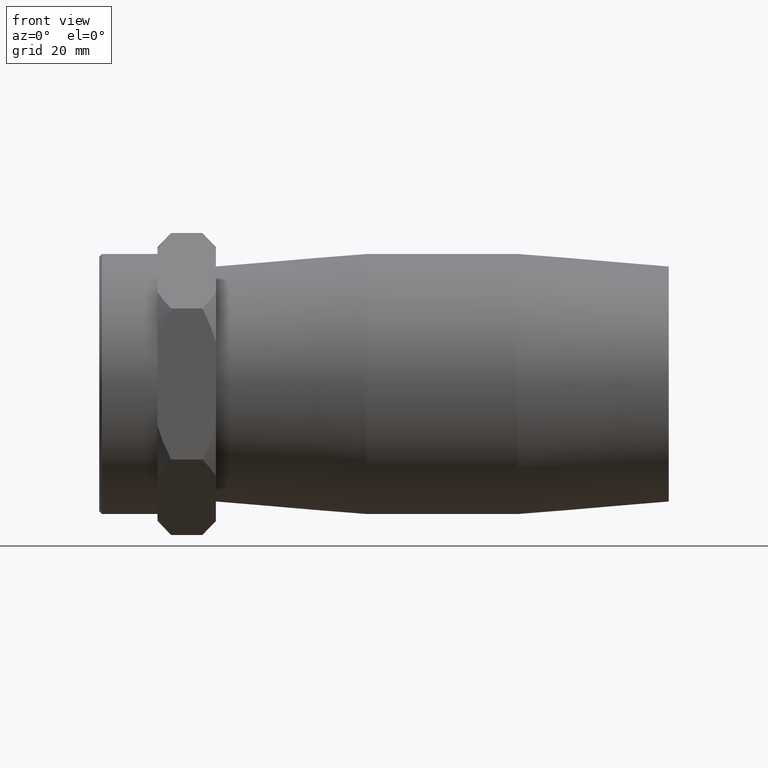
[diagram: clean part render]
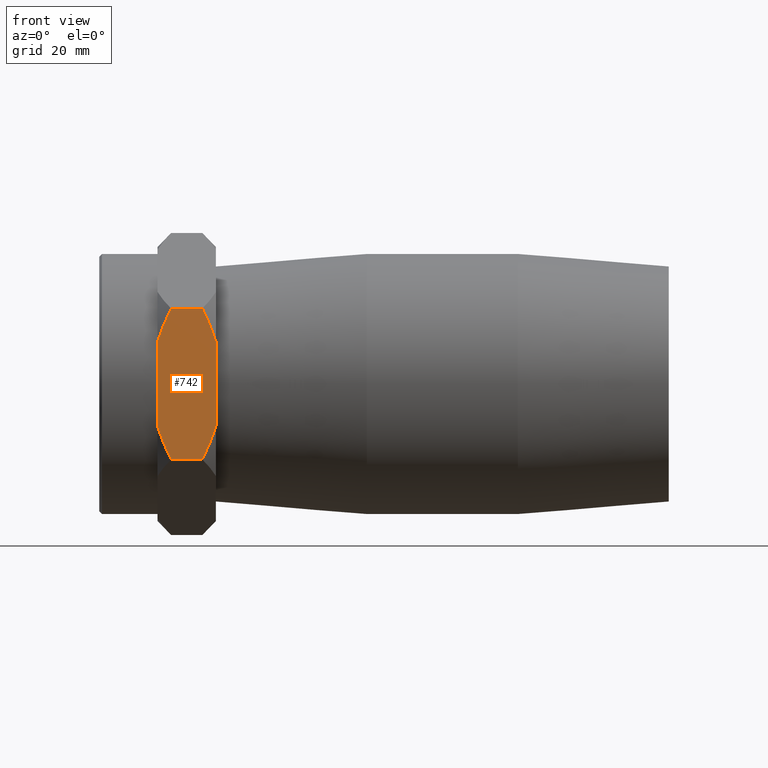
[diagram: same view with one face highlighted and labeled with its STEP entity id]
A machine part, front view. The second image highlights one B-rep face of the part: STEP entity #742.
In plain terms, the highlighted planar face has unit normal (0, -1, -0).
Its self-contained STEP definition (entity closure, byte-faithful):
#24=LINE('',#1273,#48);
#27=LINE('',#1277,#51);
#33=LINE('',#1286,#57);
#37=LINE('',#1292,#61);
#39=LINE('',#1295,#63);
#48=VECTOR('',#978,9.06752258891825);
#51=VECTOR('',#983,6.70000000000002);
#57=VECTOR('',#995,9.06752258891826);
#61=VECTOR('',#1003,6.70000000000002);
#63=VECTOR('',#1007,18.1350451778365);
#71=(
BOUNDED_CURVE()
B_SPLINE_CURVE(2,(#1166,#1167,#1168),.UNSPECIFIED.,.F.,.F.)
B_SPLINE_CURVE_WITH_KNOTS((3,3),(0.,0.767433549102517),.UNSPECIFIED.)
CURVE()
GEOMETRIC_REPRESENTATION_ITEM()
RATIONAL_B_SPLINE_CURVE((1.,1.00667029966225,1.))
REPRESENTATION_ITEM('')
);
#73=(
BOUNDED_CURVE()
B_SPLINE_CURVE(2,(#1177,#1178,#1179),.UNSPECIFIED.,.F.,.F.)
B_SPLINE_CURVE_WITH_KNOTS((3,3),(0.,0.767433549102516),.UNSPECIFIED.)
CURVE()
GEOMETRIC_REPRESENTATION_ITEM()
RATIONAL_B_SPLINE_CURVE((1.,1.00667029966226,1.))
REPRESENTATION_ITEM('')
);
#77=(
BOUNDED_CURVE()
B_SPLINE_CURVE(2,(#1199,#1200,#1201),.UNSPECIFIED.,.F.,.F.)
B_SPLINE_CURVE_WITH_KNOTS((3,3),(0.,0.767433549102517),.UNSPECIFIED.)
CURVE()
GEOMETRIC_REPRESENTATION_ITEM()
RATIONAL_B_SPLINE_CURVE((1.,1.00667029966211,1.))
REPRESENTATION_ITEM('')
);
#83=(
BOUNDED_CURVE()
B_SPLINE_CURVE(2,(#1232,#1233,#1234),.UNSPECIFIED.,.F.,.F.)
B_SPLINE_CURVE_WITH_KNOTS((3,3),(0.,0.767433549102517),.UNSPECIFIED.)
CURVE()
GEOMETRIC_REPRESENTATION_ITEM()
RATIONAL_B_SPLINE_CURVE((1.,1.00667029966217,1.))
REPRESENTATION_ITEM('')
);
#111=PLANE('',#825);
#183=FACE_OUTER_BOUND('',#245,.T.);
#245=EDGE_LOOP('',(#619,#620,#621,#622,#623,#624,#625,#626,#627));
#348=VERTEX_POINT('',#1123);
#360=VERTEX_POINT('',#1164);
#361=VERTEX_POINT('',#1165);
#363=VERTEX_POINT('',#1175);
#364=VERTEX_POINT('',#1176);
#369=VERTEX_POINT('',#1197);
#370=VERTEX_POINT('',#1198);
#378=VERTEX_POINT('',#1230);
#379=VERTEX_POINT('',#1231);
#431=EDGE_CURVE('',#360,#361,#71,.T.);
#434=EDGE_CURVE('',#363,#364,#73,.T.);
#440=EDGE_CURVE('',#369,#370,#77,.T.);
#449=EDGE_CURVE('',#378,#379,#83,.T.);
#465=EDGE_CURVE('',#348,#361,#24,.T.);
#468=EDGE_CURVE('',#378,#364,#27,.T.);
#474=EDGE_CURVE('',#363,#348,#33,.T.);
#478=EDGE_CURVE('',#370,#360,#37,.T.);
#480=EDGE_CURVE('',#379,#369,#39,.T.);
#619=ORIENTED_EDGE('',*,*,#434,.T.);
#620=ORIENTED_EDGE('',*,*,#468,.F.);
#621=ORIENTED_EDGE('',*,*,#449,.T.);
#622=ORIENTED_EDGE('',*,*,#480,.T.);
#623=ORIENTED_EDGE('',*,*,#440,.T.);
#624=ORIENTED_EDGE('',*,*,#478,.T.);
#625=ORIENTED_EDGE('',*,*,#431,.T.);
#626=ORIENTED_EDGE('',*,*,#465,.F.);
#627=ORIENTED_EDGE('',*,*,#474,.F.);
#742=ADVANCED_FACE('',(#183),#111,.T.);
#825=AXIS2_PLACEMENT_3D('',#1294,#1005,#1006);
#978=DIRECTION('',(0.,-1.51089925358709E-15,1.));
#983=DIRECTION('',(-1.,0.,0.));
#995=DIRECTION('',(0.,-1.51089925358709E-15,1.));
#1003=DIRECTION('',(-1.,0.,0.));
#1005=DIRECTION('center_axis',(0.,-1.,-1.51089925358709E-15));
#1006=DIRECTION('ref_axis',(0.,-1.4210854715202E-15,1.));
#1007=DIRECTION('',(0.,-1.51089925358709E-15,1.));
#1123=CARTESIAN_POINT('',(-61.,-28.,-4.21884749357559E-14));
#1164=CARTESIAN_POINT('',(-58.1,-28.,16.1658075373095));
#1165=CARTESIAN_POINT('',(-61.,-28.,9.06752258891821));
#1166=CARTESIAN_POINT('Ctrl Pts',(-58.1,-28.,16.1658075373095));
#1167=CARTESIAN_POINT('Ctrl Pts',(-59.9578935726549,-28.,12.4500203919997));
#1168=CARTESIAN_POINT('Ctrl Pts',(-61.,-28.,9.06752258891822));
#1175=CARTESIAN_POINT('',(-61.,-28.,-9.0675225889183));
#1176=CARTESIAN_POINT('',(-58.1,-28.,-16.1658075373096));
#1177=CARTESIAN_POINT('Ctrl Pts',(-61.,-28.,-9.0675225889183));
#1178=CARTESIAN_POINT('Ctrl Pts',(-59.9578935726549,-28.,-12.4500203919998));
#1179=CARTESIAN_POINT('Ctrl Pts',(-58.1,-28.,-16.1658075373096));
#1197=CARTESIAN_POINT('',(-48.5,-28.,9.06752258891819));
#1198=CARTESIAN_POINT('',(-51.4,-28.,16.1658075373095));
#1199=CARTESIAN_POINT('Ctrl Pts',(-48.5,-28.,9.06752258891822));
#1200=CARTESIAN_POINT('Ctrl Pts',(-49.5421064273451,-28.,12.4500203919997));
#1201=CARTESIAN_POINT('Ctrl Pts',(-51.4,-28.,16.1658075373095));
#1230=CARTESIAN_POINT('',(-51.4,-28.,-16.1658075373096));
#1231=CARTESIAN_POINT('',(-48.5,-28.,-9.06752258891828));
#1232=CARTESIAN_POINT('Ctrl Pts',(-51.4,-28.,-16.1658075373096));
#1233=CARTESIAN_POINT('Ctrl Pts',(-49.5421064273451,-28.,-12.4500203919998));
#1234=CARTESIAN_POINT('Ctrl Pts',(-48.5,-28.,-9.0675225889183));
#1273=CARTESIAN_POINT('',(-61.,-28.,-16.1658075373096));
#1277=CARTESIAN_POINT('',(-48.5,-28.,-16.1658075373096));
#1286=CARTESIAN_POINT('',(-61.,-28.,-16.1658075373096));
#1292=CARTESIAN_POINT('',(-48.5,-28.,16.1658075373095));
#1294=CARTESIAN_POINT('Origin',(-48.5,-28.,-16.1658075373096));
#1295=CARTESIAN_POINT('',(-48.5,-28.,-16.1658075373096));